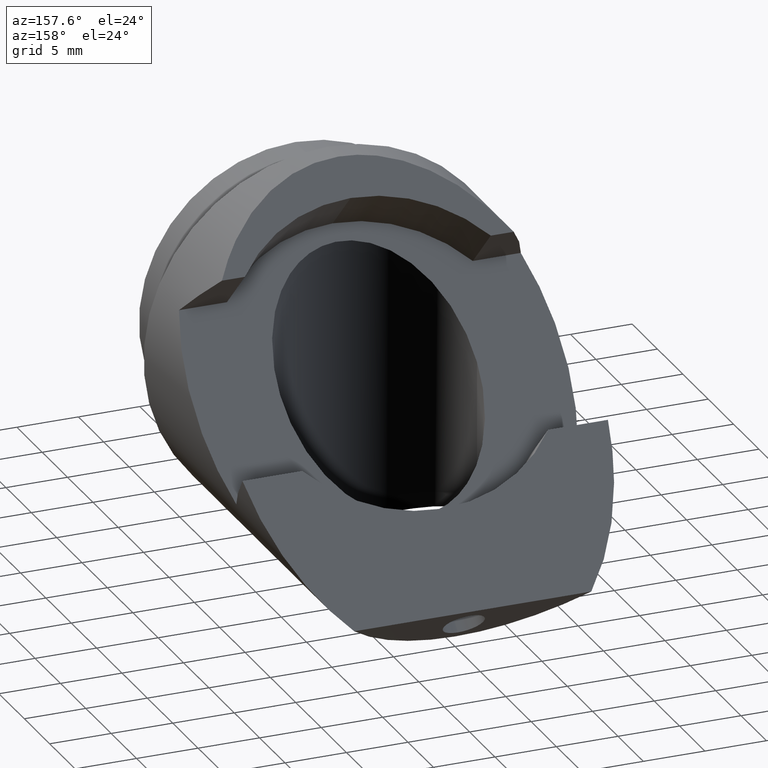
[diagram: clean part render]
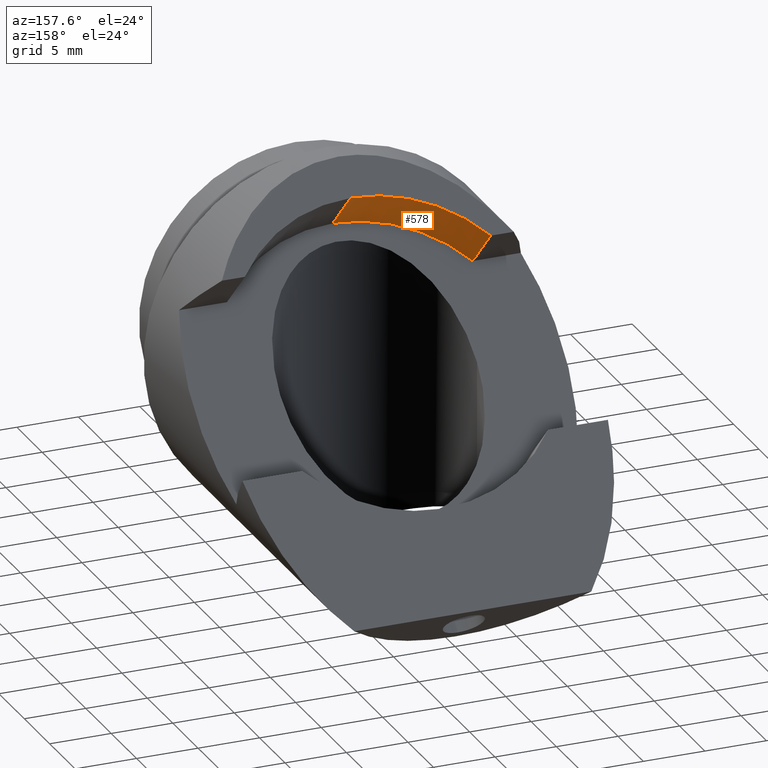
[diagram: same view with one face highlighted and labeled with its STEP entity id]
A machine part, auxiliary view. The second image highlights one B-rep face of the part: STEP entity #578.
In plain terms, the highlighted cylindrical surface (partial cylindrical patch) has radius 12.8 mm, axis along (-0, 0.7071, 0.7071).
Its self-contained STEP definition (entity closure, byte-faithful):
#10 = CARTESIAN_POINT ( 'NONE',  ( 0.0000000000000000000, 9.928932188134471200, -5.204170427930421300E-015 ) ) ;
#58 = DIRECTION ( 'NONE',  ( -0.0000000000000000000, 0.7071067811865475700, 0.7071067811865474600 ) ) ;
#70 = EDGE_CURVE ( 'NONE', #215, #951, #494, .T. ) ;
#89 = DIRECTION ( 'NONE',  ( 0.0000000000000000000, -0.7071067811865475700, -0.7071067811865474600 ) ) ;
#102 = ORIENTED_EDGE ( 'NONE', *, *, #894, .F. ) ;
#117 = CARTESIAN_POINT ( 'NONE',  ( -9.991996797437233000, 7.807611844574652500, 9.192388155425289800 ) ) ;
#118 = EDGE_CURVE ( 'NONE', #951, #828, #212, .T. ) ;
#123 = DIRECTION ( 'NONE',  ( -0.0000000000000000000, 0.7071067811865475700, 0.7071067811865474600 ) ) ;
#124 = CIRCLE ( 'NONE', #421, 12.80000000000000100 ) ;
#153 = ORIENTED_EDGE ( 'NONE', *, *, #70, .F. ) ;
#212 = CIRCLE ( 'NONE', #252, 12.79999999999999700 ) ;
#215 = VERTEX_POINT ( 'NONE', #117 ) ;
#252 = AXIS2_PLACEMENT_3D ( 'NONE', #10, #549, #473 ) ;
#283 = VECTOR ( 'NONE', #89, 1000.000000000000000 ) ;
#288 = CYLINDRICAL_SURFACE ( 'NONE', #756, 12.79999999999999900 ) ;
#296 = EDGE_CURVE ( 'NONE', #215, #456, #124, .T. ) ;
#344 = ORIENTED_EDGE ( 'NONE', *, *, #118, .F. ) ;
#421 = AXIS2_PLACEMENT_3D ( 'NONE', #902, #123, #980 ) ;
#456 = VERTEX_POINT ( 'NONE', #471 ) ;
#465 = DIRECTION ( 'NONE',  ( -0.0000000000000000000, 0.7071067811865475700, 0.7071067811865474600 ) ) ;
#471 = CARTESIAN_POINT ( 'NONE',  ( 0.0000000000000000000, 4.413499294879401600, 12.58650070512053900 ) ) ;
#473 = DIRECTION ( 'NONE',  ( 0.0000000000000000000, -0.7071067811865473500, 0.7071067811865475700 ) ) ;
#494 = LINE ( 'NONE', #561, #283 ) ;
#531 = FACE_OUTER_BOUND ( 'NONE', #938, .T. ) ;
#549 = DIRECTION ( 'NONE',  ( -0.0000000000000000000, 0.7071067811865475700, 0.7071067811865474600 ) ) ;
#561 = CARTESIAN_POINT ( 'NONE',  ( -9.991996797437233000, 12.95031225277498300, 14.33508856362562200 ) ) ;
#567 = CARTESIAN_POINT ( 'NONE',  ( 0.0000000000000000000, 9.556199703079702300, 17.72920111332084000 ) ) ;
#578 = ADVANCED_FACE ( 'NONE', ( #531 ), #288, .F. ) ;
#741 = CARTESIAN_POINT ( 'NONE',  ( -9.991996797437179700, 4.272077938641866800, 5.656854249492600900 ) ) ;
#755 = DIRECTION ( 'NONE',  ( 0.0000000000000000000, -0.7071067811865475700, 0.7071067811865474600 ) ) ;
#756 = AXIS2_PLACEMENT_3D ( 'NONE', #826, #58, #755 ) ;
#772 = LINE ( 'NONE', #567, #896 ) ;
#776 = CARTESIAN_POINT ( 'NONE',  ( 0.0000000000000000000, 0.8779653889466644300, 9.050966799187804700 ) ) ;
#826 = CARTESIAN_POINT ( 'NONE',  ( 0.0000000000000000000, 18.60716650226751100, 8.678234314133032300 ) ) ;
#828 = VERTEX_POINT ( 'NONE', #776 ) ;
#894 = EDGE_CURVE ( 'NONE', #828, #456, #772, .T. ) ;
#896 = VECTOR ( 'NONE', #465, 1000.000000000000000 ) ;
#902 = CARTESIAN_POINT ( 'NONE',  ( 0.0000000000000000000, 13.46446609406720900, 3.535533905932731100 ) ) ;
#938 = EDGE_LOOP ( 'NONE', ( #102, #344, #153, #995 ) ) ;
#951 = VERTEX_POINT ( 'NONE', #741 ) ;
#980 = DIRECTION ( 'NONE',  ( 0.0000000000000000000, -0.7071067811865474600, 0.7071067811865475700 ) ) ;
#995 = ORIENTED_EDGE ( 'NONE', *, *, #296, .T. ) ;